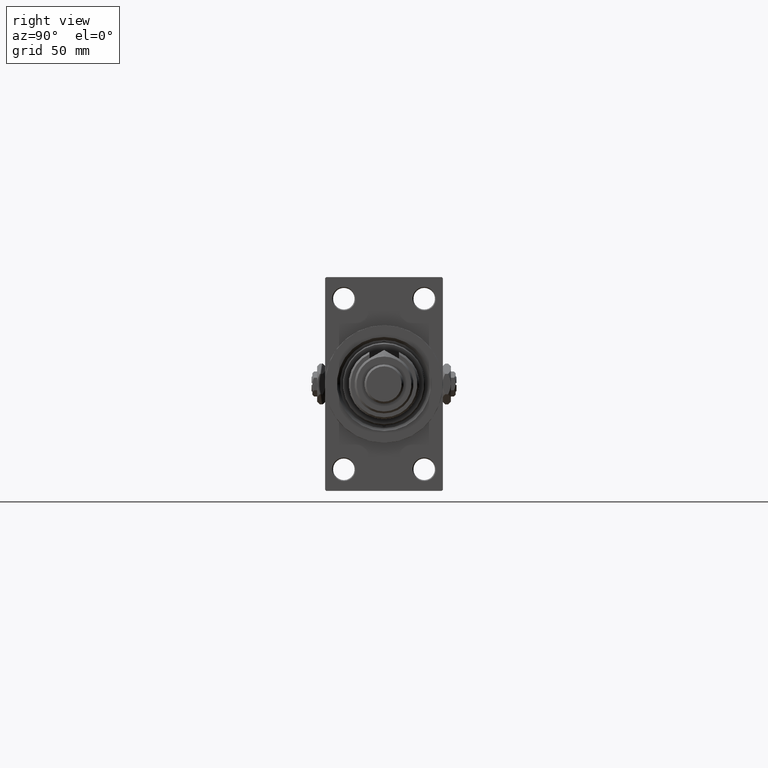
[diagram: clean part render]
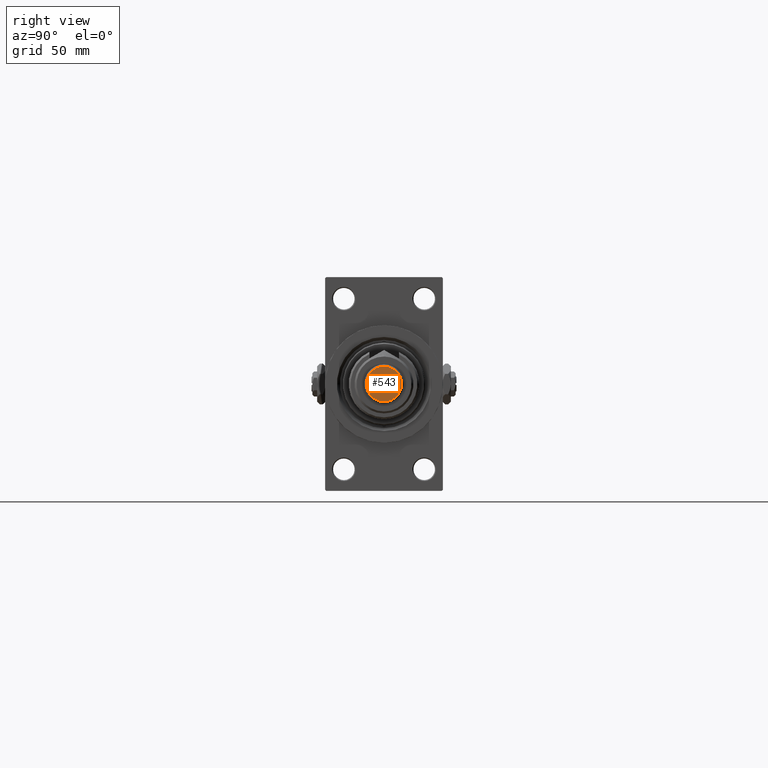
[diagram: same view with one face highlighted and labeled with its STEP entity id]
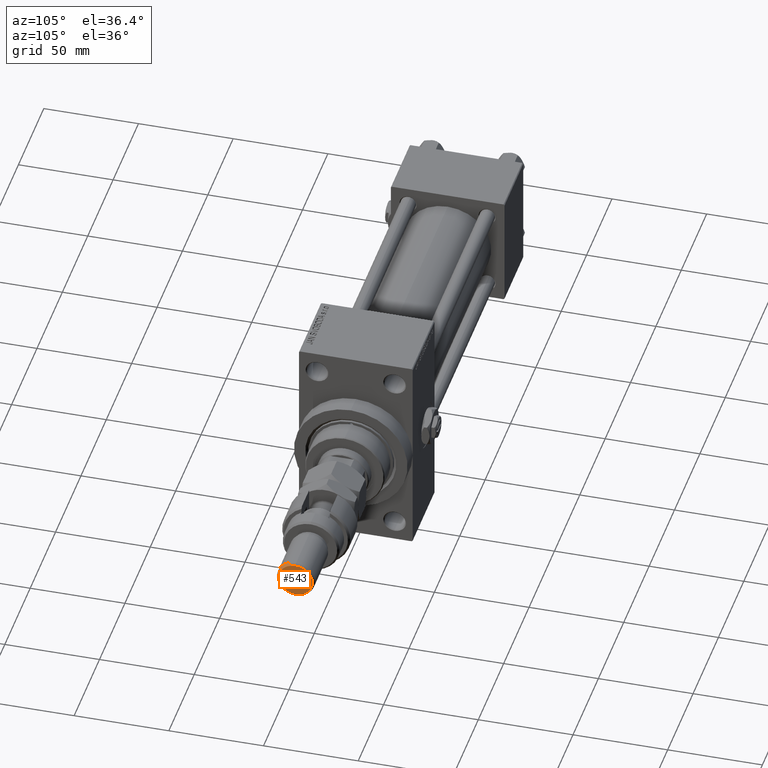
[diagram: same view with one face highlighted and labeled with its STEP entity id]
A machine part, right view. The second image highlights one B-rep face of the part: STEP entity #543.
A second angle (auxiliary view) of the same face is appended — the face is thin or edge-on in the first view.
In plain terms, the highlighted planar face has unit normal (1, 0, 0).
Its self-contained STEP definition (entity closure, byte-faithful):
#543 = ADVANCED_FACE ( 'NONE', ( #36362 ), #5142, .T. ) ;
#5142 = PLANE ( 'NONE',  #43606 ) ;
#5562 = CIRCLE ( 'NONE', #13136, 8.999999999999987566 ) ;
#5566 = VERTEX_POINT ( 'NONE', #50813 ) ;
#8543 = ORIENTED_EDGE ( 'NONE', *, *, #38955, .T. ) ;
#12237 = DIRECTION ( 'NONE',  ( 1.000000000000000000, 0.000000000000000000, 0.000000000000000000 ) ) ;
#13136 = AXIS2_PLACEMENT_3D ( 'NONE', #51573, #40036, #12237 ) ;
#16502 = ORIENTED_EDGE ( 'NONE', *, *, #16809, .T. ) ;
#16809 = EDGE_CURVE ( 'NONE', #19610, #5566, #33094, .T. ) ;
#19610 = VERTEX_POINT ( 'NONE', #41532 ) ;
#25564 = AXIS2_PLACEMENT_3D ( 'NONE', #42037, #51187, #26566 ) ;
#26566 = DIRECTION ( 'NONE',  ( 1.000000000000000000, 0.000000000000000000, 0.000000000000000000 ) ) ;
#28236 = DIRECTION ( 'NONE',  ( 0.000000000000000000, 0.000000000000000000, 1.000000000000000000 ) ) ;
#33094 = CIRCLE ( 'NONE', #25564, 8.999999999999987566 ) ;
#36362 = FACE_OUTER_BOUND ( 'NONE', #50607, .T. ) ;
#38955 = EDGE_CURVE ( 'NONE', #5566, #19610, #5562, .T. ) ;
#40036 = DIRECTION ( 'NONE',  ( 0.000000000000000000, 0.000000000000000000, 1.000000000000000000 ) ) ;
#41532 = CARTESIAN_POINT ( 'NONE',  ( 8.999999999999987566, 1.163414459189984894E-15, 56.00000000000000711 ) ) ;
#42037 = CARTESIAN_POINT ( 'NONE',  ( 0.000000000000000000, 0.000000000000000000, 56.00000000000000711 ) ) ;
#43606 = AXIS2_PLACEMENT_3D ( 'NONE', #48667, #28236, #48924 ) ;
#48667 = CARTESIAN_POINT ( 'NONE',  ( 0.000000000000000000, 0.000000000000000000, 56.00000000000000711 ) ) ;
#48924 = DIRECTION ( 'NONE',  ( 1.000000000000000000, 0.000000000000000000, -0.000000000000000000 ) ) ;
#50607 = EDGE_LOOP ( 'NONE', ( #8543, #16502 ) ) ;
#50813 = CARTESIAN_POINT ( 'NONE',  ( -8.999999999999987566, 0.000000000000000000, 56.00000000000000711 ) ) ;
#51187 = DIRECTION ( 'NONE',  ( 0.000000000000000000, 0.000000000000000000, 1.000000000000000000 ) ) ;
#51573 = CARTESIAN_POINT ( 'NONE',  ( 0.000000000000000000, 0.000000000000000000, 56.00000000000000711 ) ) ;